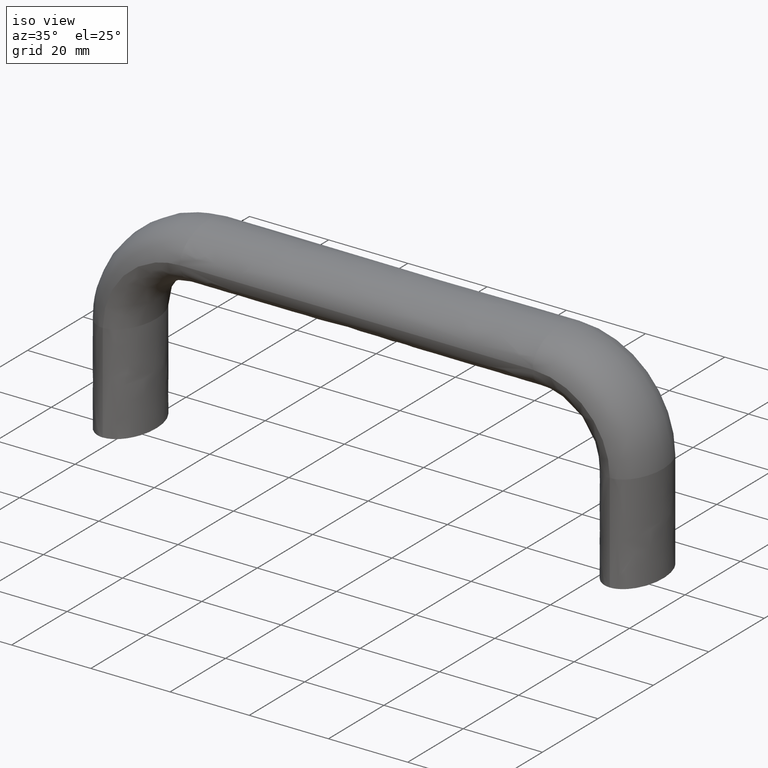
[diagram: clean part render]
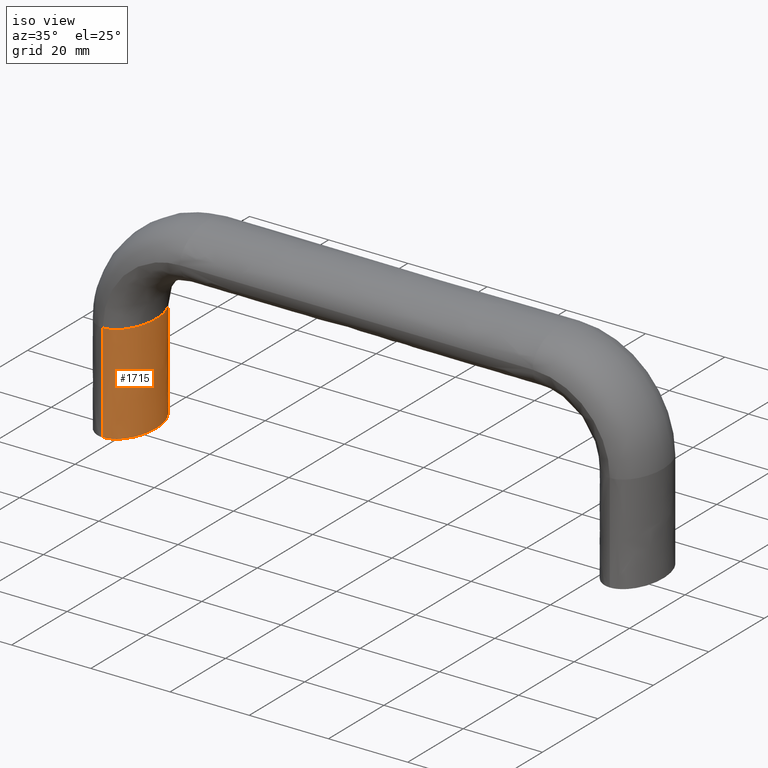
[diagram: same view with one face highlighted and labeled with its STEP entity id]
A machine part, iso view. The second image highlights one B-rep face of the part: STEP entity #1715.
In plain terms, the highlighted face is a freeform B-spline surface patch.
Its self-contained STEP definition (entity closure, byte-faithful):
#1382=CARTESIAN_POINT('',(3.129217387489629,8.755444309227849,25.0));
#1383=VERTEX_POINT('',#1382);
#1397=CARTESIAN_POINT('',(0.0,10.0,25.0));
#1398=VERTEX_POINT('',#1397);
#1399=CARTESIAN_POINT('',(3.129217387489629,8.755444309227849,25.0));
#1400=CARTESIAN_POINT('',(2.173878806999225,9.558561397034476,25.0));
#1401=CARTESIAN_POINT('',(1.089085453431123,10.0,25.0));
#1402=CARTESIAN_POINT('',(0.0,10.0,25.0));
#1403=B_SPLINE_CURVE_WITH_KNOTS('',3,(#1399,#1400,#1401,#1402),.UNSPECIFIED.,.F.,.U.,(4,4),(0.419999999986289,0.500000000000000),.UNSPECIFIED.);
#1404=EDGE_CURVE('',#1383,#1398,#1403,.T.);
#1406=CARTESIAN_POINT('',(-2.765141685643417,9.039503756692852,25.0));
#1407=VERTEX_POINT('',#1406);
#1408=CARTESIAN_POINT('',(0.0,10.0,25.0));
#1409=CARTESIAN_POINT('',(-0.952949771779357,10.0,25.0));
#1410=CARTESIAN_POINT('',(-1.902613404600903,9.662023569585280,25.0));
#1411=CARTESIAN_POINT('',(-2.765141685643417,9.039503756692852,25.0));
#1412=B_SPLINE_CURVE_WITH_KNOTS('',3,(#1408,#1409,#1410,#1411),.UNSPECIFIED.,.F.,.U.,(4,4),(0.500000000000000,0.570000000013990),.UNSPECIFIED.);
#1413=EDGE_CURVE('',#1398,#1407,#1412,.T.);
#1415=CARTESIAN_POINT('',(3.747003E-014,-10.0,25.0));
#1416=VERTEX_POINT('',#1415);
#1531=CARTESIAN_POINT('',(0.0,-10.0,25.0));
#1532=CARTESIAN_POINT('',(1.701696020694470,-10.0,25.0));
#1533=CARTESIAN_POINT('',(3.392913281961335,-8.922269036098131,25.0));
#1534=CARTESIAN_POINT('',(5.799474873463780,-5.219866587632820,25.0));
#1535=CARTESIAN_POINT('',(6.500000000000000,-2.617993877991495,25.0));
#1536=CARTESIAN_POINT('',(6.500000000000000,2.617993877991495,25.0));
#1537=CARTESIAN_POINT('',(5.799474873463780,5.219866587632830,25.0));
#1538=CARTESIAN_POINT('',(4.163012991374101,7.737500252386177,25.0));
#1539=CARTESIAN_POINT('',(3.666595339143357,8.303690947229089,25.0));
#1540=CARTESIAN_POINT('',(3.129217387489629,8.755444309227849,25.0));
#1541=B_SPLINE_CURVE_WITH_KNOTS('',3,(#1531,#1532,#1533,#1534,#1535,#1536,#1537,#1538,#1539,#1540),.UNSPECIFIED.,.F.,.U.,(4,2,2,2,4),(0.0,0.125000000000000,0.250000000000000,0.375000000000000,0.419999999986289),.UNSPECIFIED.);
#1542=EDGE_CURVE('',#1416,#1383,#1541,.T.);
#1590=CARTESIAN_POINT('',(-2.767718893953111,9.043070625830358,0.0));
#1591=VERTEX_POINT('',#1590);
#1592=CARTESIAN_POINT('',(-2.767718893953111,9.043070625830358,0.0));
#1593=CARTESIAN_POINT('',(-2.766859824516823,9.041881669451572,8.333333330654044));
#1594=CARTESIAN_POINT('',(-2.766114533176235,9.040692713071511,16.666666670234068));
#1595=CARTESIAN_POINT('',(-2.765141685643417,9.039503756692852,25.0));
#1596=B_SPLINE_CURVE_WITH_KNOTS('',3,(#1592,#1593,#1594,#1595),.UNSPECIFIED.,.F.,.U.,(4,4),(0.0,0.124837047863849),.UNSPECIFIED.);
#1597=EDGE_CURVE('',#1591,#1407,#1596,.T.);
#1599=CARTESIAN_POINT('',(3.252607E-016,-10.0,0.0));
#1600=VERTEX_POINT('',#1599);
#1619=CARTESIAN_POINT('',(0.0,-10.0,0.0));
#1620=CARTESIAN_POINT('',(0.0,-10.0,8.333333330977913));
#1621=CARTESIAN_POINT('',(-0.000106634018477,-10.0,16.666666669802851));
#1622=CARTESIAN_POINT('',(0.0,-10.0,25.0));
#1623=B_SPLINE_CURVE_WITH_KNOTS('',3,(#1619,#1620,#1621,#1622),.UNSPECIFIED.,.F.,.U.,(4,4),(0.0,0.124837047863849),.UNSPECIFIED.);
#1624=EDGE_CURVE('',#1600,#1416,#1623,.T.);
#1629=CARTESIAN_POINT('',(0.0,-10.0,0.0));
#1630=CARTESIAN_POINT('',(1.701696020694470,-10.0,0.0));
#1631=CARTESIAN_POINT('',(3.392913281961335,-8.922269036098131,0.0));
#1632=CARTESIAN_POINT('',(5.799474873463780,-5.219866587632820,0.0));
#1633=CARTESIAN_POINT('',(6.500000000000000,-2.617993877991495,0.0));
#1634=CARTESIAN_POINT('',(6.500000000000000,2.617993877991495,0.0));
#1635=CARTESIAN_POINT('',(5.799474873463780,5.219866587632830,0.0));
#1636=CARTESIAN_POINT('',(3.392913281961330,8.922269036098131,0.0));
#1637=CARTESIAN_POINT('',(1.701696020694470,10.0,0.0));
#1638=CARTESIAN_POINT('',(-0.952949771588903,10.0,0.0));
#1639=CARTESIAN_POINT('',(-1.902613404221309,9.662023569720375,0.0));
#1640=CARTESIAN_POINT('',(-2.765141685384861,9.039503756879462,0.0));
#1641=CARTESIAN_POINT('',(0.0,-10.0,8.333333330977913));
#1642=CARTESIAN_POINT('',(1.701696020694470,-10.0,8.333333331183860));
#1643=CARTESIAN_POINT('',(3.392913281961335,-8.922269036098131,8.333333331401740));
#1644=CARTESIAN_POINT('',(5.799474873463780,-5.219866587632820,8.333333331725880));
#1645=CARTESIAN_POINT('',(6.500000000000000,-2.617993877991495,8.333333331822990));
#1646=CARTESIAN_POINT('',(6.500000000000000,2.617993877991495,8.333333331822990));
#1647=CARTESIAN_POINT('',(5.799474873463780,5.219866587632830,8.333333331725880));
#1648=CARTESIAN_POINT('',(3.392913281961330,8.922269036098131,8.333333331401740));
#1649=CARTESIAN_POINT('',(1.701696020694470,10.0,8.333333331183860));
#1650=CARTESIAN_POINT('',(-0.952949771588903,10.0,8.333333330862585));
#1651=CARTESIAN_POINT('',(-1.902613404221309,9.662023569720375,8.333333330751817));
#1652=CARTESIAN_POINT('',(-2.765141685384861,9.039503756879462,8.333333330654043));
#1653=CARTESIAN_POINT('',(-0.000106634018478,-10.0,16.666666669802851));
#1654=CARTESIAN_POINT('',(1.701594057227735,-10.0,16.666666669528649));
#1655=CARTESIAN_POINT('',(3.392816624426850,-8.922269036098131,16.666666669238548));
#1656=CARTESIAN_POINT('',(5.799386698030220,-5.219866587632820,16.666666668806950));
#1657=CARTESIAN_POINT('',(6.499914529665181,-2.617993877991495,16.666666668677649));
#1658=CARTESIAN_POINT('',(6.499914529665181,2.617993877991495,16.666666668677649));
#1659=CARTESIAN_POINT('',(5.799386698030220,5.219866587632830,16.666666668806950));
#1660=CARTESIAN_POINT('',(3.392816624426850,8.922269036098131,16.666666669238548));
#1661=CARTESIAN_POINT('',(1.701594057227735,10.0,16.666666669528649));
#1662=CARTESIAN_POINT('',(-0.953059021116360,10.0,16.666666669956399));
#1663=CARTESIAN_POINT('',(-1.902725085303044,9.662023569720375,16.666666670103879));
#1664=CARTESIAN_POINT('',(-2.765255463481482,9.039503756879462,16.666666670234068));
#1665=CARTESIAN_POINT('',(0.0,-10.0,25.0));
#1666=CARTESIAN_POINT('',(1.701696020694470,-10.0,25.0));
#1667=CARTESIAN_POINT('',(3.392913281961335,-8.922269036098131,25.0));
#1668=CARTESIAN_POINT('',(5.799474873463780,-5.219866587632820,25.0));
#1669=CARTESIAN_POINT('',(6.500000000000000,-2.617993877991495,25.0));
#1670=CARTESIAN_POINT('',(6.500000000000000,2.617993877991495,25.0));
#1671=CARTESIAN_POINT('',(5.799474873463780,5.219866587632830,25.0));
#1672=CARTESIAN_POINT('',(3.392913281961330,8.922269036098131,25.0));
#1673=CARTESIAN_POINT('',(1.701696020694470,10.0,25.0));
#1674=CARTESIAN_POINT('',(-0.952949771588903,10.0,25.0));
#1675=CARTESIAN_POINT('',(-1.902613404221309,9.662023569720375,25.0));
#1676=CARTESIAN_POINT('',(-2.765141685384861,9.039503756879462,25.0));
#1677=B_SPLINE_SURFACE_WITH_KNOTS('',3,3,((#1629,#1641,#1653,#1665),(#1630,#1642,#1654,#1666),(#1631,#1643,#1655,#1667),(#1632,#1644,#1656,#1668),(#1633,#1645,#1657,#1669),(#1634,#1646,#1658,#1670),(#1635,#1647,#1659,#1671),(#1636,#1648,#1660,#1672),(#1637,#1649,#1661,#1673),(#1638,#1650,#1662,#1674),(#1639,#1651,#1663,#1675),(#1640,#1652,#1664,#1676)),.UNSPECIFIED.,.F.,.F.,.U.,(4,2,2,2,2,4),(4,4),(0.0,7.693622043917650,15.387244087835301,23.080866131752948,30.774488175670601,35.082916520264483),(0.0,25.000000003826319),.UNSPECIFIED.);
#1678=ORIENTED_EDGE('',*,*,#1413,.F.);
#1679=ORIENTED_EDGE('',*,*,#1404,.F.);
#1680=ORIENTED_EDGE('',*,*,#1542,.F.);
#1681=ORIENTED_EDGE('',*,*,#1624,.F.);
#1682=CARTESIAN_POINT('',(-1.301043E-015,10.0,0.0));
#1683=VERTEX_POINT('',#1682);
#1684=CARTESIAN_POINT('',(5.827587E-016,-9.999999999999991,0.0));
#1685=CARTESIAN_POINT('',(1.293495947650843,-9.999801000622920,0.0));
#1686=CARTESIAN_POINT('',(2.487442310373089,-9.238795325112871,0.0));
#1687=CARTESIAN_POINT('',(3.682367494606962,-8.477165761672067,0.0));
#1688=CARTESIAN_POINT('',(4.596194077712559,-7.071067811865456,0.0));
#1689=CARTESIAN_POINT('',(5.510710038218062,-5.663909122344585,0.0));
#1690=CARTESIAN_POINT('',(6.005216961323355,-3.826834323650897,0.0));
#1691=CARTESIAN_POINT('',(6.500096933217217,-1.988373662603977,0.0));
#1692=CARTESIAN_POINT('',(6.500000000000003,-3.672735E-015,0.0));
#1693=CARTESIAN_POINT('',(6.499902993657782,1.989873662604707,0.0));
#1694=CARTESIAN_POINT('',(6.005216961323353,3.826834323650896,0.0));
#1695=CARTESIAN_POINT('',(5.510157745084252,5.665180760941928,0.0));
#1696=CARTESIAN_POINT('',(4.596194077712557,7.071067811865471,0.0));
#1697=CARTESIAN_POINT('',(3.681540929521299,8.478015443412405,0.0));
#1698=CARTESIAN_POINT('',(2.487442310373079,9.238795325112868,0.0));
#1699=CARTESIAN_POINT('',(1.292989169263922,9.999801078589059,0.0));
#1700=CARTESIAN_POINT('',(-1.409463E-015,9.999999999999996,0.0));
#1701=B_SPLINE_CURVE_WITH_KNOTS('',2,(#1684,#1685,#1686,#1687,#1688,#1689,#1690,#1691,#1692,#1693,#1694,#1695,#1696,#1697,#1698,#1699,#1700),.UNSPECIFIED.,.F.,.U.,(3,2,2,2,2,2,2,2,3),(0.0,0.125000000000000,0.250000000000000,0.375000000000000,0.500000000000000,0.625000000000000,0.750000000000000,0.875000000000000,1.0),.UNSPECIFIED.);
#1702=EDGE_CURVE('',#1600,#1683,#1701,.T.);
#1703=ORIENTED_EDGE('',*,*,#1702,.T.);
#1704=CARTESIAN_POINT('',(-1.301043E-015,10.0,0.0));
#1705=CARTESIAN_POINT('',(-1.292419972266786,9.998311845129067,0.0));
#1706=CARTESIAN_POINT('',(-2.485155382817015,9.235630205565570,0.0));
#1707=CARTESIAN_POINT('',(-2.628462429844961,9.143994078540672,0.0));
#1708=CARTESIAN_POINT('',(-2.767718893953111,9.043070625830358,0.0));
#1709=B_SPLINE_CURVE_WITH_KNOTS('',2,(#1704,#1705,#1706,#1707,#1708),.UNSPECIFIED.,.F.,.U.,(3,2,3),(0.0,0.125000000000000,0.140006435623409),.UNSPECIFIED.);
#1710=EDGE_CURVE('',#1683,#1591,#1709,.T.);
#1711=ORIENTED_EDGE('',*,*,#1710,.T.);
#1712=ORIENTED_EDGE('',*,*,#1597,.T.);
#1713=EDGE_LOOP('',(#1678,#1679,#1680,#1681,#1703,#1711,#1712));
#1714=FACE_OUTER_BOUND('',#1713,.T.);
#1715=ADVANCED_FACE('',(#1714),#1677,.T.);